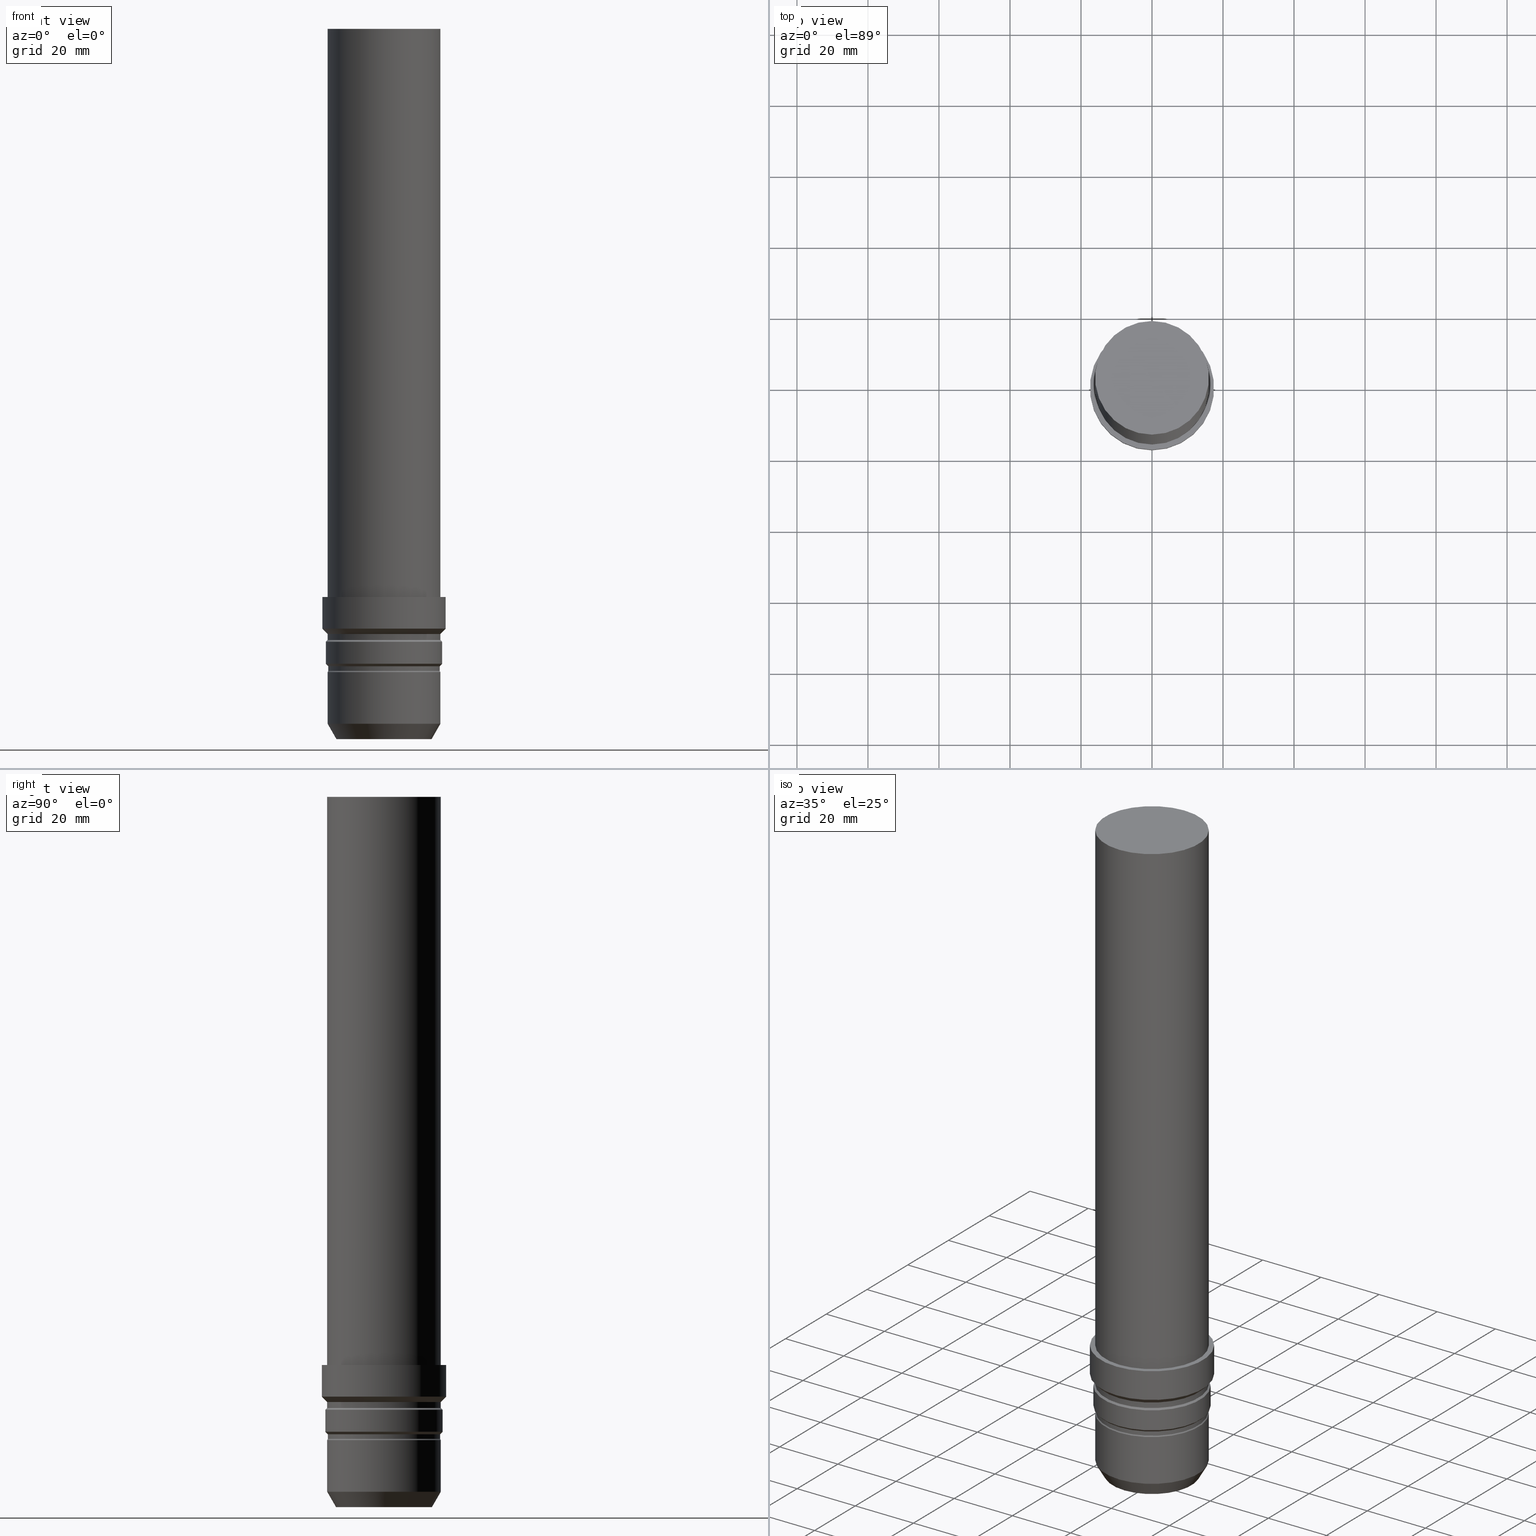
[diagram: canonical four-view strip — front | top / right | iso, engineering-drawing reading convention]
A machine part, canonical four-view strip (front | top / right | iso — engineering-drawing reading convention). The complete STEP part file that produces these views, byte-faithful:
ISO-10303-21;
HEADER;
FILE_DESCRIPTION((''),'1');
FILE_NAME('U:/Translate/00_BIG-HP\X2\FF71FF6FFF8CFF9F\X0\2013/\X2\30C030A630F330ED30FC30C930C730FC30BF\X0\/Vol9\X2\4EE5964D63B28F094E885B9A\X0\/STEP_\X2\FF82FF70FF98FF9DFF78FF9E7DE8\X0\Vol9-1\X2\4EE5964D63B28F094E885B9A\X0\/ST32-HMC12J-200.stp','2014-12-22T04:00:42',(''),(''),'Spatial Interop R21 SP3','Kubotek KeyCreator 2011 V10.0.2 (22737)',' ');
FILE_SCHEMA(('automotive_design'));
ENDSEC;
DATA;
#1=MECHANICAL_DESIGN_GEOMETRIC_PRESENTATION_REPRESENTATION(' ',(#10,#11,#12,#13,#14,#15,#16,#17,#18,#19,#20,#21,#22,#23,#24,#25,#26,#27,#28,#29,#30,#31,#32,#33,#34,#35,#36,#37),#6);
#2=PRODUCT_DEFINITION_CONTEXT('',#38,'design');
#3=APPLICATION_PROTOCOL_DEFINITION('INTERNATIONAL STANDARD','automotive_design',1994,#38);
#4=PRODUCT_CATEGORY_RELATIONSHIP('NONE','NONE',#39,#40);
#5=SHAPE_DEFINITION_REPRESENTATION(#41,#42);
#6= (GEOMETRIC_REPRESENTATION_CONTEXT(3)GLOBAL_UNCERTAINTY_ASSIGNED_CONTEXT((#45))GLOBAL_UNIT_ASSIGNED_CONTEXT((#47,#48,#49))REPRESENTATION_CONTEXT('NONE','WORKSPACE'));
#10=STYLED_ITEM('',(#51),#52);
#11=STYLED_ITEM('',(#53,#54),#55);
#12=STYLED_ITEM('',(#56),#57);
#13=STYLED_ITEM('',(#58,#59),#60);
#14=STYLED_ITEM('',(#61,#62),#63);
#15=STYLED_ITEM('',(#64,#65),#66);
#16=STYLED_ITEM('',(#67),#68);
#17=STYLED_ITEM('',(#69),#70);
#18=STYLED_ITEM('',(#71),#72);
#19=STYLED_ITEM('',(#73),#74);
#20=STYLED_ITEM('',(#75,#76),#77);
#21=STYLED_ITEM('',(#78,#79),#80);
#22=STYLED_ITEM('',(#81,#82),#83);
#23=STYLED_ITEM('',(#84,#85),#86);
#24=STYLED_ITEM('',(#87),#88);
#25=STYLED_ITEM('',(#89,#90),#91);
#26=STYLED_ITEM('',(#92,#93),#94);
#27=STYLED_ITEM('',(#95),#96);
#28=STYLED_ITEM('',(#97,#98),#99);
#29=STYLED_ITEM('',(#100,#101),#102);
#30=STYLED_ITEM('',(#103),#104);
#31=STYLED_ITEM('',(#105),#106);
#32=STYLED_ITEM('',(#107),#108);
#33=STYLED_ITEM('',(#109,#110),#111);
#34=STYLED_ITEM('',(#112,#113),#114);
#35=STYLED_ITEM('',(#115),#116);
#36=STYLED_ITEM('',(#117),#118);
#37=STYLED_ITEM('',(#119,#120),#121);
#38=APPLICATION_CONTEXT(' ');
#39=PRODUCT_CATEGORY('part','NONE');
#40=PRODUCT_RELATED_PRODUCT_CATEGORY('detail',' ',(#122));
#41=PRODUCT_DEFINITION_SHAPE('NONE','NONE',#123);
#42=ADVANCED_BREP_SHAPE_REPRESENTATION('Unnamed[1]',(#114,#124),#6);
#45=UNCERTAINTY_MEASURE_WITH_UNIT(LENGTH_MEASURE(1.0E-006),#47,'','');
#47= (CONVERSION_BASED_UNIT('MILLIMETRE',#127)LENGTH_UNIT()NAMED_UNIT(#130));
#48= (NAMED_UNIT(#132)PLANE_ANGLE_UNIT()SI_UNIT($,.RADIAN.));
#49= (NAMED_UNIT(#132)SOLID_ANGLE_UNIT()SI_UNIT($,.STERADIAN.));
#51=PRESENTATION_STYLE_ASSIGNMENT((#138));
#52=EDGE_CURVE('Unnamed[1]',#139,#139,#140,.T.);
#53=PRESENTATION_STYLE_ASSIGNMENT((#141));
#54=PRESENTATION_STYLE_ASSIGNMENT((#142));
#55=ADVANCED_FACE('Unnamed[1]',(#143,#144),#145,.T.);
#56=PRESENTATION_STYLE_ASSIGNMENT((#146));
#57=EDGE_CURVE('Unnamed[1]',#147,#147,#148,.T.);
#58=PRESENTATION_STYLE_ASSIGNMENT((#149));
#59=PRESENTATION_STYLE_ASSIGNMENT((#150));
#60=ADVANCED_FACE('Unnamed[1]',(#151,#152),#153,.T.);
#61=PRESENTATION_STYLE_ASSIGNMENT((#154));
#62=PRESENTATION_STYLE_ASSIGNMENT((#155));
#63=ADVANCED_FACE('Unnamed[1]',(#156,#157),#158,.T.);
#64=PRESENTATION_STYLE_ASSIGNMENT((#159));
#65=PRESENTATION_STYLE_ASSIGNMENT((#160));
#66=ADVANCED_FACE('Unnamed[1]',(#161,#162),#163,.T.);
#67=PRESENTATION_STYLE_ASSIGNMENT((#164));
#68=EDGE_CURVE('Unnamed[1]',#165,#165,#166,.T.);
#69=PRESENTATION_STYLE_ASSIGNMENT((#167));
#70=EDGE_CURVE('Unnamed[1]',#168,#168,#169,.T.);
#71=PRESENTATION_STYLE_ASSIGNMENT((#170));
#72=EDGE_CURVE('Unnamed[1]',#171,#171,#172,.T.);
#73=PRESENTATION_STYLE_ASSIGNMENT((#173));
#74=EDGE_CURVE('Unnamed[1]',#174,#174,#175,.T.);
#75=PRESENTATION_STYLE_ASSIGNMENT((#176));
#76=PRESENTATION_STYLE_ASSIGNMENT((#177));
#77=ADVANCED_FACE('Unnamed[1]',(#178,#179),#180,.T.);
#78=PRESENTATION_STYLE_ASSIGNMENT((#181));
#79=PRESENTATION_STYLE_ASSIGNMENT((#182));
#80=ADVANCED_FACE('Unnamed[1]',(#183,#184),#185,.T.);
#81=PRESENTATION_STYLE_ASSIGNMENT((#186));
#82=PRESENTATION_STYLE_ASSIGNMENT((#187));
#83=ADVANCED_FACE('Unnamed[1]',(#188,#189),#190,.T.);
#84=PRESENTATION_STYLE_ASSIGNMENT((#191));
#85=PRESENTATION_STYLE_ASSIGNMENT((#192));
#86=ADVANCED_FACE('Unnamed[1]',(#193,#194),#195,.T.);
#87=PRESENTATION_STYLE_ASSIGNMENT((#196));
#88=EDGE_CURVE('Unnamed[1]',#197,#197,#198,.T.);
#89=PRESENTATION_STYLE_ASSIGNMENT((#199));
#90=PRESENTATION_STYLE_ASSIGNMENT((#200));
#91=ADVANCED_FACE('Unnamed[1]',(#201),#202,.T.);
#92=PRESENTATION_STYLE_ASSIGNMENT((#203));
#93=PRESENTATION_STYLE_ASSIGNMENT((#204));
#94=ADVANCED_FACE('Unnamed[1]',(#205,#206),#207,.T.);
#95=PRESENTATION_STYLE_ASSIGNMENT((#208));
#96=EDGE_CURVE('Unnamed[1]',#209,#209,#210,.T.);
#97=PRESENTATION_STYLE_ASSIGNMENT((#211));
#98=PRESENTATION_STYLE_ASSIGNMENT((#212));
#99=ADVANCED_FACE('Unnamed[1]',(#213,#214),#215,.T.);
#100=PRESENTATION_STYLE_ASSIGNMENT((#216));
#101=PRESENTATION_STYLE_ASSIGNMENT((#217));
#102=ADVANCED_FACE('Unnamed[1]',(#218,#219),#220,.T.);
#103=PRESENTATION_STYLE_ASSIGNMENT((#221));
#104=EDGE_CURVE('Unnamed[1]',#222,#222,#223,.T.);
#105=PRESENTATION_STYLE_ASSIGNMENT((#224));
#106=EDGE_CURVE('Unnamed[1]',#225,#225,#226,.T.);
#107=PRESENTATION_STYLE_ASSIGNMENT((#227));
#108=EDGE_CURVE('Unnamed[1]',#228,#228,#229,.T.);
#109=PRESENTATION_STYLE_ASSIGNMENT((#230));
#110=PRESENTATION_STYLE_ASSIGNMENT((#231));
#111=ADVANCED_FACE('Unnamed[1]',(#232,#233),#234,.T.);
#112=PRESENTATION_STYLE_ASSIGNMENT((#235));
#113=PRESENTATION_STYLE_ASSIGNMENT((#236));
#114=MANIFOLD_SOLID_BREP('Unnamed[1]',#237);
#115=PRESENTATION_STYLE_ASSIGNMENT((#238));
#116=EDGE_CURVE('Unnamed[1]',#239,#239,#240,.T.);
#117=PRESENTATION_STYLE_ASSIGNMENT((#241));
#118=EDGE_CURVE('Unnamed[1]',#242,#242,#243,.T.);
#119=PRESENTATION_STYLE_ASSIGNMENT((#244));
#120=PRESENTATION_STYLE_ASSIGNMENT((#245));
#121=ADVANCED_FACE('Unnamed[1]',(#246),#247,.T.);
#122=PRODUCT('Unnamed[1]','Unnamed[1]','PART-Unnamed[1]-DESC',(#248));
#123=PRODUCT_DEFINITION('NONE','NONE',#249,#2);
#124=AXIS2_PLACEMENT_3D('',#250,#251,#252);
#127=LENGTH_MEASURE_WITH_UNIT(LENGTH_MEASURE(1.0),#253);
#130=DIMENSIONAL_EXPONENTS(1.0,0.0,0.0,0.0,0.0,0.0,0.0);
#132=DIMENSIONAL_EXPONENTS(0.0,0.0,0.0,0.0,0.0,0.0,0.0);
#138=CURVE_STYLE('',#254,POSITIVE_LENGTH_MEASURE(1000.0),#255);
#139=VERTEX_POINT('',#256);
#140=CIRCLE('',#257,16.0);
#141=SURFACE_STYLE_USAGE(.BOTH.,#258);
#142=CURVE_STYLE('',#259,POSITIVE_LENGTH_MEASURE(1000.0),#260);
#143=FACE_BOUND('',#261,.T.);
#144=FACE_BOUND('',#262,.T.);
#145=CYLINDRICAL_SURFACE('',#263,16.0000000000002);
#146=CURVE_STYLE('',#264,POSITIVE_LENGTH_MEASURE(1000.0),#265);
#147=VERTEX_POINT('',#266);
#148=CIRCLE('',#267,16.5000000000002);
#149=SURFACE_STYLE_USAGE(.BOTH.,#268);
#150=CURVE_STYLE('',#269,POSITIVE_LENGTH_MEASURE(1000.0),#270);
#151=FACE_BOUND('',#271,.T.);
#152=FACE_BOUND('',#272,.T.);
#153=CONICAL_SURFACE('',#273,16.7500000000002,0.785398163397435);
#154=SURFACE_STYLE_USAGE(.BOTH.,#274);
#155=CURVE_STYLE('',#275,POSITIVE_LENGTH_MEASURE(1000.0),#276);
#156=FACE_BOUND('',#277,.T.);
#157=FACE_BOUND('',#278,.T.);
#158=CONICAL_SURFACE('',#279,16.2500000000002,0.785398163397469);
#159=SURFACE_STYLE_USAGE(.BOTH.,#280);
#160=CURVE_STYLE('',#281,POSITIVE_LENGTH_MEASURE(1000.0),#282);
#161=FACE_OUTER_BOUND('',#283,.T.);
#162=FACE_BOUND('',#284,.T.);
#163=PLANE('',#285);
#164=CURVE_STYLE('',#286,POSITIVE_LENGTH_MEASURE(1000.0),#287);
#165=VERTEX_POINT('',#288);
#166=CIRCLE('',#289,16.0000000000002);
#167=CURVE_STYLE('',#290,POSITIVE_LENGTH_MEASURE(1000.0),#291);
#168=VERTEX_POINT('',#292);
#169=CIRCLE('',#293,13.5000000000001);
#170=CURVE_STYLE('',#294,POSITIVE_LENGTH_MEASURE(1000.0),#295);
#171=VERTEX_POINT('',#296);
#172=CIRCLE('',#297,16.0);
#173=CURVE_STYLE('',#298,POSITIVE_LENGTH_MEASURE(1000.0),#299);
#174=VERTEX_POINT('',#300);
#175=CIRCLE('',#301,16.0);
#176=SURFACE_STYLE_USAGE(.BOTH.,#302);
#177=CURVE_STYLE('',#303,POSITIVE_LENGTH_MEASURE(1000.0),#304);
#178=FACE_BOUND('',#305,.T.);
#179=FACE_BOUND('',#306,.T.);
#180=CONICAL_SURFACE('',#307,16.1500000000001,0.785398163397413);
#181=SURFACE_STYLE_USAGE(.BOTH.,#308);
#182=CURVE_STYLE('',#309,POSITIVE_LENGTH_MEASURE(1000.0),#310);
#183=FACE_BOUND('',#311,.T.);
#184=FACE_BOUND('',#312,.T.);
#185=CYLINDRICAL_SURFACE('',#313,15.8000000000001);
#186=SURFACE_STYLE_USAGE(.BOTH.,#314);
#187=CURVE_STYLE('',#315,POSITIVE_LENGTH_MEASURE(1000.0),#316);
#188=FACE_BOUND('',#317,.T.);
#189=FACE_BOUND('',#318,.T.);
#190=CYLINDRICAL_SURFACE('',#319,17.5000000000002);
#191=SURFACE_STYLE_USAGE(.BOTH.,#320);
#192=CURVE_STYLE('',#321,POSITIVE_LENGTH_MEASURE(1000.0),#322);
#193=FACE_BOUND('',#323,.T.);
#194=FACE_BOUND('',#324,.T.);
#195=CONICAL_SURFACE('',#325,15.9000000000001,0.523598775598126);
#196=CURVE_STYLE('',#326,POSITIVE_LENGTH_MEASURE(1000.0),#327);
#197=VERTEX_POINT('',#328);
#198=CIRCLE('',#329,16.0000000000002);
#199=SURFACE_STYLE_USAGE(.BOTH.,#330);
#200=CURVE_STYLE('',#331,POSITIVE_LENGTH_MEASURE(1000.0),#332);
#201=FACE_OUTER_BOUND('',#333,.T.);
#202=PLANE('',#334);
#203=SURFACE_STYLE_USAGE(.BOTH.,#335);
#204=CURVE_STYLE('',#336,POSITIVE_LENGTH_MEASURE(1000.0),#337);
#205=FACE_BOUND('',#338,.T.);
#206=FACE_BOUND('',#339,.T.);
#207=CONICAL_SURFACE('',#340,14.75,0.523598775598304);
#208=CURVE_STYLE('',#341,POSITIVE_LENGTH_MEASURE(1000.0),#342);
#209=VERTEX_POINT('',#343);
#210=CIRCLE('',#344,17.5000000000002);
#211=SURFACE_STYLE_USAGE(.BOTH.,#345);
#212=CURVE_STYLE('',#346,POSITIVE_LENGTH_MEASURE(1000.0),#347);
#213=FACE_BOUND('',#348,.T.);
#214=FACE_BOUND('',#349,.T.);
#215=CYLINDRICAL_SURFACE('',#350,16.5000000000001);
#216=SURFACE_STYLE_USAGE(.BOTH.,#351);
#217=CURVE_STYLE('',#352,POSITIVE_LENGTH_MEASURE(1000.0),#353);
#218=FACE_BOUND('',#354,.T.);
#219=FACE_BOUND('',#355,.T.);
#220=CYLINDRICAL_SURFACE('',#356,16.0000000000001);
#221=CURVE_STYLE('',#357,POSITIVE_LENGTH_MEASURE(1000.0),#358);
#222=VERTEX_POINT('',#359);
#223=CIRCLE('',#360,15.8000000000001);
#224=CURVE_STYLE('',#361,POSITIVE_LENGTH_MEASURE(1000.0),#362);
#225=VERTEX_POINT('',#363);
#226=CIRCLE('',#364,16.5000000000001);
#227=CURVE_STYLE('',#365,POSITIVE_LENGTH_MEASURE(1000.0),#366);
#228=VERTEX_POINT('',#367);
#229=CIRCLE('',#368,16.0000000000002);
#230=SURFACE_STYLE_USAGE(.BOTH.,#369);
#231=CURVE_STYLE('',#370,POSITIVE_LENGTH_MEASURE(1000.0),#371);
#232=FACE_BOUND('',#372,.T.);
#233=FACE_BOUND('',#373,.T.);
#234=CYLINDRICAL_SURFACE('',#374,16.0);
#235=SURFACE_STYLE_USAGE(.BOTH.,#375);
#236=CURVE_STYLE('',#376,POSITIVE_LENGTH_MEASURE(1000.0),#377);
#237=CLOSED_SHELL('',(#121,#102,#66,#83,#60,#55,#63,#99,#77,#80,#86,#111,#94,#91));
#238=CURVE_STYLE('',#378,POSITIVE_LENGTH_MEASURE(1000.0),#379);
#239=VERTEX_POINT('',#380);
#240=CIRCLE('',#381,17.5000000000002);
#241=CURVE_STYLE('',#382,POSITIVE_LENGTH_MEASURE(1000.0),#383);
#242=VERTEX_POINT('',#384);
#243=CIRCLE('',#385,15.8000000000001);
#244=SURFACE_STYLE_USAGE(.BOTH.,#386);
#245=CURVE_STYLE('',#387,POSITIVE_LENGTH_MEASURE(1000.0),#388);
#246=FACE_OUTER_BOUND('',#389,.T.);
#247=PLANE('',#390);
#248=PRODUCT_CONTEXT('',#38,'mechanical');
#249=PRODUCT_DEFINITION_FORMATION_WITH_SPECIFIED_SOURCE(' ','NONE',#122,.NOT_KNOWN.);
#250=CARTESIAN_POINT('',(0.0,0.0,0.0));
#251=DIRECTION('',(0.0,0.0,1.0));
#252=DIRECTION('',(1.0,0.0,0.0));
#253= (NAMED_UNIT(#130)LENGTH_UNIT()SI_UNIT(.MILLI.,.METRE.));
#254=DRAUGHTING_PRE_DEFINED_CURVE_FONT('continuous');
#255=COLOUR_RGB('',0.0,1.0,0.0);
#256=CARTESIAN_POINT('',(-1.15444942240699E-015,16.0,18.8535898384868));
#257=AXIS2_PLACEMENT_3D('',#392,#393,#394);
#258=SURFACE_SIDE_STYLE('',(#395));
#259=DRAUGHTING_PRE_DEFINED_CURVE_FONT('continuous');
#260=COLOUR_RGB('',0.0,1.0,0.0);
#261=EDGE_LOOP('',(#396));
#262=EDGE_LOOP('',(#397));
#263=AXIS2_PLACEMENT_3D('',#398,#399,#400);
#264=DRAUGHTING_PRE_DEFINED_CURVE_FONT('continuous');
#265=COLOUR_RGB('',0.0,1.0,0.0);
#266=CARTESIAN_POINT('',(-1.6777661148318E-015,16.5000000000002,27.3999999999988));
#267=AXIS2_PLACEMENT_3D('',#401,#402,#403);
#268=SURFACE_SIDE_STYLE('',(#404));
#269=DRAUGHTING_PRE_DEFINED_CURVE_FONT('continuous');
#270=COLOUR_RGB('',0.0,1.0,0.0);
#271=EDGE_LOOP('',(#405));
#272=EDGE_LOOP('',(#406));
#273=AXIS2_PLACEMENT_3D('',#407,#408,#409);
#274=SURFACE_SIDE_STYLE('',(#410));
#275=DRAUGHTING_PRE_DEFINED_CURVE_FONT('continuous');
#276=COLOUR_RGB('',0.0,1.0,0.0);
#277=EDGE_LOOP('',(#411));
#278=EDGE_LOOP('',(#412));
#279=AXIS2_PLACEMENT_3D('',#413,#414,#415);
#280=SURFACE_SIDE_STYLE('',(#416));
#281=DRAUGHTING_PRE_DEFINED_CURVE_FONT('continuous');
#282=COLOUR_RGB('',0.0,1.0,0.0);
#283=EDGE_LOOP('',(#417));
#284=EDGE_LOOP('',(#418));
#285=AXIS2_PLACEMENT_3D('',#419,#420,#421);
#286=DRAUGHTING_PRE_DEFINED_CURVE_FONT('continuous');
#287=COLOUR_RGB('',0.0,1.0,0.0);
#288=CARTESIAN_POINT('',(-2.4492935982947E-015,16.0000000000002,39.9999999999999));
#289=AXIS2_PLACEMENT_3D('',#422,#423,#424);
#290=DRAUGHTING_PRE_DEFINED_CURVE_FONT('continuous');
#291=COLOUR_RGB('',0.0,1.0,0.0);
#292=CARTESIAN_POINT('',(1.57772181044202E-030,13.5000000000001,-2.8421709430404E-014));
#293=AXIS2_PLACEMENT_3D('',#425,#426,#427);
#294=DRAUGHTING_PRE_DEFINED_CURVE_FONT('continuous');
#295=COLOUR_RGB('',0.0,1.0,0.0);
#296=CARTESIAN_POINT('',(-1.22464679914735E-014,16.0000000000002,200.0));
#297=AXIS2_PLACEMENT_3D('',#428,#429,#430);
#298=DRAUGHTING_PRE_DEFINED_CURVE_FONT('continuous');
#299=COLOUR_RGB('',0.0,1.0,0.0);
#300=CARTESIAN_POINT('',(-2.65143809681212E-016,16.0,4.33012701892196));
#301=AXIS2_PLACEMENT_3D('',#431,#432,#433);
#302=SURFACE_SIDE_STYLE('',(#434));
#303=DRAUGHTING_PRE_DEFINED_CURVE_FONT('continuous');
#304=COLOUR_RGB('',0.0,1.0,0.0);
#305=EDGE_LOOP('',(#435));
#306=EDGE_LOOP('',(#436));
#307=AXIS2_PLACEMENT_3D('',#437,#438,#439);
#308=SURFACE_SIDE_STYLE('',(#440));
#309=DRAUGHTING_PRE_DEFINED_CURVE_FONT('continuous');
#310=COLOUR_RGB('',0.0,1.0,0.0);
#311=EDGE_LOOP('',(#441));
#312=EDGE_LOOP('',(#442));
#313=AXIS2_PLACEMENT_3D('',#443,#444,#445);
#314=SURFACE_SIDE_STYLE('',(#446));
#315=DRAUGHTING_PRE_DEFINED_CURVE_FONT('continuous');
#316=COLOUR_RGB('',0.0,1.0,0.0);
#317=EDGE_LOOP('',(#447));
#318=EDGE_LOOP('',(#448));
#319=AXIS2_PLACEMENT_3D('',#449,#450,#451);
#320=SURFACE_SIDE_STYLE('',(#452));
#321=DRAUGHTING_PRE_DEFINED_CURVE_FONT('continuous');
#322=COLOUR_RGB('',0.0,1.0,0.0);
#323=EDGE_LOOP('',(#453));
#324=EDGE_LOOP('',(#454));
#325=AXIS2_PLACEMENT_3D('',#455,#456,#457);
#326=DRAUGHTING_PRE_DEFINED_CURVE_FONT('continuous');
#327=COLOUR_RGB('',0.0,1.0,0.0);
#328=CARTESIAN_POINT('',(-1.81247726273802E-015,16.0000000000002,29.5999999999989));
#329=AXIS2_PLACEMENT_3D('',#458,#459,#460);
#330=SURFACE_SIDE_STYLE('',(#461));
#331=DRAUGHTING_PRE_DEFINED_CURVE_FONT('continuous');
#332=COLOUR_RGB('',0.0,1.0,0.0);
#333=EDGE_LOOP('',(#462));
#334=AXIS2_PLACEMENT_3D('',#463,#464,#465);
#335=SURFACE_SIDE_STYLE('',(#466));
#336=DRAUGHTING_PRE_DEFINED_CURVE_FONT('continuous');
#337=COLOUR_RGB('',0.0,1.0,0.0);
#338=EDGE_LOOP('',(#467));
#339=EDGE_LOOP('',(#468));
#340=AXIS2_PLACEMENT_3D('',#469,#470,#471);
#341=DRAUGHTING_PRE_DEFINED_CURVE_FONT('continuous');
#342=COLOUR_RGB('',0.0,1.0,0.0);
#343=CARTESIAN_POINT('',(-2.44929359829466E-015,17.5000000000002,39.9999999999992));
#344=AXIS2_PLACEMENT_3D('',#472,#473,#474);
#345=SURFACE_SIDE_STYLE('',(#475));
#346=DRAUGHTING_PRE_DEFINED_CURVE_FONT('continuous');
#347=COLOUR_RGB('',0.0,1.0,0.0);
#348=EDGE_LOOP('',(#476));
#349=EDGE_LOOP('',(#477));
#350=AXIS2_PLACEMENT_3D('',#478,#479,#480);
#351=SURFACE_SIDE_STYLE('',(#481));
#352=DRAUGHTING_PRE_DEFINED_CURVE_FONT('continuous');
#353=COLOUR_RGB('',0.0,1.0,0.0);
#354=EDGE_LOOP('',(#482));
#355=EDGE_LOOP('',(#483));
#356=AXIS2_PLACEMENT_3D('',#484,#485,#486);
#357=DRAUGHTING_PRE_DEFINED_CURVE_FONT('continuous');
#358=COLOUR_RGB('',0.0,1.0,0.0);
#359=CARTESIAN_POINT('',(-1.17566092718148E-015,15.8000000000002,19.2000000000004));
#360=AXIS2_PLACEMENT_3D('',#487,#488,#489);
#361=DRAUGHTING_PRE_DEFINED_CURVE_FONT('continuous');
#362=COLOUR_RGB('',0.0,1.0,0.0);
#363=CARTESIAN_POINT('',(-1.29812560709621E-015,16.5000000000001,21.2000000000002));
#364=AXIS2_PLACEMENT_3D('',#490,#491,#492);
#365=DRAUGHTING_PRE_DEFINED_CURVE_FONT('continuous');
#366=COLOUR_RGB('',0.0,1.0,0.0);
#367=CARTESIAN_POINT('',(-1.70838228481049E-015,16.0000000000002,27.8999999999988));
#368=AXIS2_PLACEMENT_3D('',#493,#494,#495);
#369=SURFACE_SIDE_STYLE('',(#496));
#370=DRAUGHTING_PRE_DEFINED_CURVE_FONT('continuous');
#371=COLOUR_RGB('',0.0,1.0,0.0);
#372=EDGE_LOOP('',(#497));
#373=EDGE_LOOP('',(#498));
#374=AXIS2_PLACEMENT_3D('',#499,#500,#501);
#375=SURFACE_SIDE_STYLE('',(#502));
#376=DRAUGHTING_PRE_DEFINED_CURVE_FONT('continuous');
#377=COLOUR_RGB('',0.0,1.0,0.0);
#378=DRAUGHTING_PRE_DEFINED_CURVE_FONT('continuous');
#379=COLOUR_RGB('',0.0,1.0,0.0);
#380=CARTESIAN_POINT('',(-1.90432577267407E-015,17.5000000000002,31.099999999999));
#381=AXIS2_PLACEMENT_3D('',#503,#504,#505);
#382=DRAUGHTING_PRE_DEFINED_CURVE_FONT('continuous');
#383=COLOUR_RGB('',0.0,1.0,0.0);
#384=CARTESIAN_POINT('',(-1.25526296912605E-015,15.8000000000002,20.5000000000003));
#385=AXIS2_PLACEMENT_3D('',#506,#507,#508);
#386=SURFACE_SIDE_STYLE('',(#509));
#387=DRAUGHTING_PRE_DEFINED_CURVE_FONT('continuous');
#388=COLOUR_RGB('',0.0,1.0,0.0);
#389=EDGE_LOOP('',(#510));
#390=AXIS2_PLACEMENT_3D('',#511,#512,#513);
#392=CARTESIAN_POINT('',(-1.154449422407E-015,2.02407412788415E-014,18.8535898384868));
#393=DIRECTION('',(6.12323399573676E-017,-1.07357492404576E-015,-1.0));
#394=DIRECTION('',(6.09103519881032E-032,1.0,-1.07357492404576E-015));
#395=SURFACE_STYLE_FILL_AREA(#514);
#396=ORIENTED_EDGE('',*,*,#108,.F.);
#397=ORIENTED_EDGE('',*,*,#88,.T.);
#398=CARTESIAN_POINT('',(-1.76042977377425E-015,3.08652790663117E-014,28.7499999999989));
#399=DIRECTION('',(6.12323399573676E-017,-1.07357492404574E-015,-1.0));
#400=DIRECTION('',(6.09103519881024E-032,1.0,-1.07357492404574E-015));
#401=CARTESIAN_POINT('',(-1.6777661148318E-015,2.941595291885E-014,27.3999999999989));
#402=DIRECTION('',(6.12323399573676E-017,-1.07357492404572E-015,-1.0));
#403=DIRECTION('',(6.09103519881139E-032,1.0,-1.07357492404572E-015));
#404=SURFACE_STYLE_FILL_AREA(#515);
#405=ORIENTED_EDGE('',*,*,#88,.F.);
#406=ORIENTED_EDGE('',*,*,#116,.T.);
#407=CARTESIAN_POINT('',(-1.85840151770604E-015,3.25829989447848E-014,30.349999999999));
#408=DIRECTION('',(-6.12323399573676E-017,1.07357492404571E-015,1.0));
#409=DIRECTION('',(6.09103519880981E-032,1.0,-1.07357492404571E-015));
#410=SURFACE_STYLE_FILL_AREA(#516);
#411=ORIENTED_EDGE('',*,*,#57,.F.);
#412=ORIENTED_EDGE('',*,*,#108,.T.);
#413=CARTESIAN_POINT('',(-1.69307419982115E-015,2.96843466498614E-014,27.6499999999989));
#414=DIRECTION('',(6.12323399573677E-017,-1.07357492404573E-015,-1.0));
#415=DIRECTION('',(6.09103519881082E-032,1.0,-1.07357492404573E-015));
#416=SURFACE_STYLE_FILL_AREA(#517);
#417=ORIENTED_EDGE('',*,*,#96,.F.);
#418=ORIENTED_EDGE('',*,*,#68,.T.);
#419=CARTESIAN_POINT('',(-2.44929359829468E-015,16.7500000000002,39.9999999999995));
#420=DIRECTION('',(-6.12323399573677E-017,4.54624886206558E-013,1.0));
#421=DIRECTION('',(-2.78329184325488E-029,-1.0,4.54624886206558E-013));
#422=CARTESIAN_POINT('',(-2.4492935982947E-015,4.29429969618264E-014,39.9999999999999));
#423=DIRECTION('',(6.12323399573677E-017,-1.07357492404574E-015,-1.0));
#424=DIRECTION('',(6.09103519881023E-032,1.0,-1.07357492404574E-015));
#425=CARTESIAN_POINT('',(0.0,0.0,0.0));
#426=DIRECTION('',(6.12323399573677E-017,-1.07357492404566E-015,-1.0));
#427=DIRECTION('',(6.09103519880986E-032,1.0,-1.07357492404566E-015));
#428=CARTESIAN_POINT('',(-1.22464679914735E-014,2.14714984809132E-013,200.0));
#429=DIRECTION('',(6.12323399573677E-017,-1.07357492404576E-015,-1.0));
#430=DIRECTION('',(6.09103519881032E-032,1.0,-1.07357492404576E-015));
#431=CARTESIAN_POINT('',(-2.65143809681214E-016,4.64871578544724E-015,4.33012701892198));
#432=DIRECTION('',(6.12323399573676E-017,-1.07357492404576E-015,-1.0));
#433=DIRECTION('',(6.09103519881032E-032,1.0,-1.07357492404576E-015));
#434=SURFACE_STYLE_FILL_AREA(#518);
#435=ORIENTED_EDGE('',*,*,#118,.F.);
#436=ORIENTED_EDGE('',*,*,#106,.T.);
#437=CARTESIAN_POINT('',(-1.27669428811113E-015,2.23840371663524E-014,20.8500000000003));
#438=DIRECTION('',(-6.12323399573676E-017,1.07357492404558E-015,1.0));
#439=DIRECTION('',(6.09103519880973E-032,1.0,-1.07357492404558E-015));
#440=SURFACE_STYLE_FILL_AREA(#519);
#441=ORIENTED_EDGE('',*,*,#104,.F.);
#442=ORIENTED_EDGE('',*,*,#118,.T.);
#443=CARTESIAN_POINT('',(-1.21546194815377E-015,2.13104622423068E-014,19.8500000000003));
#444=DIRECTION('',(6.12323399573677E-017,-1.07357492404563E-015,-1.0));
#445=DIRECTION('',(6.0910351988125E-032,1.0,-1.07357492404563E-015));
#446=SURFACE_STYLE_FILL_AREA(#520);
#447=ORIENTED_EDGE('',*,*,#116,.F.);
#448=ORIENTED_EDGE('',*,*,#96,.T.);
#449=CARTESIAN_POINT('',(-2.17680968548436E-015,3.81655885498224E-014,35.5499999999991));
#450=DIRECTION('',(6.12323399573677E-017,-1.07357492404567E-015,-1.0));
#451=DIRECTION('',(6.09103519880942E-032,1.0,-1.07357492404567E-015));
#452=SURFACE_STYLE_FILL_AREA(#521);
#453=ORIENTED_EDGE('',*,*,#52,.F.);
#454=ORIENTED_EDGE('',*,*,#104,.T.);
#455=CARTESIAN_POINT('',(-1.16505517479424E-015,2.04266899102594E-014,19.0267949192436));
#456=DIRECTION('',(6.12323399573677E-017,-1.07357492404559E-015,-1.0));
#457=DIRECTION('',(6.09103519880915E-032,1.0,-1.07357492404559E-015));
#458=CARTESIAN_POINT('',(-1.81247726273802E-015,3.17778177517505E-014,29.599999999999));
#459=DIRECTION('',(6.12323399573676E-017,-1.07357492404574E-015,-1.0));
#460=DIRECTION('',(6.09103519881024E-032,1.0,-1.07357492404574E-015));
#461=SURFACE_STYLE_FILL_AREA(#522);
#462=ORIENTED_EDGE('',*,*,#70,.T.);
#463=CARTESIAN_POINT('',(4.57539325028187E-029,6.75000000000003,-7.38964445190504E-013));
#464=DIRECTION('',(6.12323399573677E-017,1.05388055162892E-013,-1.0));
#465=DIRECTION('',(-6.45798437391079E-030,1.0,1.05388055162892E-013));
#466=SURFACE_STYLE_FILL_AREA(#523);
#467=ORIENTED_EDGE('',*,*,#70,.F.);
#468=ORIENTED_EDGE('',*,*,#74,.T.);
#469=CARTESIAN_POINT('',(-1.32571904840606E-016,2.32435789272365E-015,2.16506350946099));
#470=DIRECTION('',(-6.12323399573677E-017,1.0735749240456E-015,1.0));
#471=DIRECTION('',(6.0910351988095E-032,1.0,-1.0735749240456E-015));
#472=CARTESIAN_POINT('',(-2.44929359829466E-015,4.29429969618257E-014,39.9999999999992));
#473=DIRECTION('',(6.12323399573676E-017,-1.07357492404567E-015,-1.0));
#474=DIRECTION('',(6.09103519880942E-032,1.0,-1.07357492404567E-015));
#475=SURFACE_STYLE_FILL_AREA(#524);
#476=ORIENTED_EDGE('',*,*,#106,.F.);
#477=ORIENTED_EDGE('',*,*,#57,.T.);
#478=CARTESIAN_POINT('',(-1.48794586096401E-015,2.60878706543092E-014,24.2999999999996));
#479=DIRECTION('',(6.12323399573677E-017,-1.07357492404572E-015,-1.0));
#480=DIRECTION('',(6.09103519880924E-032,1.0,-1.07357492404572E-015));
#481=SURFACE_STYLE_FILL_AREA(#525);
#482=ORIENTED_EDGE('',*,*,#68,.F.);
#483=ORIENTED_EDGE('',*,*,#72,.T.);
#484=CARTESIAN_POINT('',(-7.3478807948841E-015,1.28828990885479E-013,120.0));
#485=DIRECTION('',(6.12323399573676E-017,-1.07357492404575E-015,-1.0));
#486=DIRECTION('',(6.09103519881252E-032,1.0,-1.07357492404575E-015));
#487=CARTESIAN_POINT('',(-1.17566092718148E-015,2.06126385416772E-014,19.2000000000004));
#488=DIRECTION('',(6.12323399573677E-017,-1.07357492404563E-015,-1.0));
#489=DIRECTION('',(6.0910351988125E-032,1.0,-1.07357492404563E-015));
#490=CARTESIAN_POINT('',(-1.29812560709621E-015,2.27597883897684E-014,21.2000000000003));
#491=DIRECTION('',(6.12323399573677E-017,-1.07357492404572E-015,-1.0));
#492=DIRECTION('',(6.09103519880926E-032,1.0,-1.07357492404572E-015));
#493=CARTESIAN_POINT('',(-1.70838228481049E-015,2.99527403808728E-014,27.8999999999989));
#494=DIRECTION('',(6.12323399573676E-017,-1.07357492404574E-015,-1.0));
#495=DIRECTION('',(6.09103519881024E-032,1.0,-1.07357492404574E-015));
#496=SURFACE_STYLE_FILL_AREA(#526);
#497=ORIENTED_EDGE('',*,*,#74,.F.);
#498=ORIENTED_EDGE('',*,*,#52,.T.);
#499=CARTESIAN_POINT('',(-7.09796616044105E-016,1.24447285321444E-014,11.5918584287044));
#500=DIRECTION('',(6.12323399573677E-017,-1.07357492404576E-015,-1.0));
#501=DIRECTION('',(6.09103519881256E-032,1.0,-1.07357492404576E-015));
#502=SURFACE_STYLE_FILL_AREA(#527);
#503=CARTESIAN_POINT('',(-1.90432577267407E-015,3.33881801378191E-014,31.099999999999));
#504=DIRECTION('',(6.12323399573677E-017,-1.07357492404567E-015,-1.0));
#505=DIRECTION('',(6.09103519880941E-032,1.0,-1.07357492404567E-015));
#506=CARTESIAN_POINT('',(-1.25526296912605E-015,2.20082859429364E-014,20.5000000000003));
#507=DIRECTION('',(6.12323399573677E-017,-1.07357492404563E-015,-1.0));
#508=DIRECTION('',(6.0910351988125E-032,1.0,-1.07357492404563E-015));
#509=SURFACE_STYLE_FILL_AREA(#528);
#510=ORIENTED_EDGE('',*,*,#72,.F.);
#511=CARTESIAN_POINT('',(-1.22464679914735E-014,8.0000000000002,200.0));
#512=DIRECTION('',(-6.12323399573677E-017,1.81018652890104E-015,1.0));
#513=DIRECTION('',(-1.06014804193147E-031,-1.0,1.81018652890104E-015));
#514=FILL_AREA_STYLE('',(#529));
#515=FILL_AREA_STYLE('',(#530));
#516=FILL_AREA_STYLE('',(#531));
#517=FILL_AREA_STYLE('',(#532));
#518=FILL_AREA_STYLE('',(#533));
#519=FILL_AREA_STYLE('',(#534));
#520=FILL_AREA_STYLE('',(#535));
#521=FILL_AREA_STYLE('',(#536));
#522=FILL_AREA_STYLE('',(#537));
#523=FILL_AREA_STYLE('',(#538));
#524=FILL_AREA_STYLE('',(#539));
#525=FILL_AREA_STYLE('',(#540));
#526=FILL_AREA_STYLE('',(#541));
#527=FILL_AREA_STYLE('',(#542));
#528=FILL_AREA_STYLE('',(#543));
#529=FILL_AREA_STYLE_COLOUR('',#544);
#530=FILL_AREA_STYLE_COLOUR('',#545);
#531=FILL_AREA_STYLE_COLOUR('',#546);
#532=FILL_AREA_STYLE_COLOUR('',#547);
#533=FILL_AREA_STYLE_COLOUR('',#548);
#534=FILL_AREA_STYLE_COLOUR('',#549);
#535=FILL_AREA_STYLE_COLOUR('',#550);
#536=FILL_AREA_STYLE_COLOUR('',#551);
#537=FILL_AREA_STYLE_COLOUR('',#552);
#538=FILL_AREA_STYLE_COLOUR('',#553);
#539=FILL_AREA_STYLE_COLOUR('',#554);
#540=FILL_AREA_STYLE_COLOUR('',#555);
#541=FILL_AREA_STYLE_COLOUR('',#556);
#542=FILL_AREA_STYLE_COLOUR('',#557);
#543=FILL_AREA_STYLE_COLOUR('',#558);
#544=COLOUR_RGB('',0.0,1.0,0.0);
#545=COLOUR_RGB('',0.0,1.0,0.0);
#546=COLOUR_RGB('',0.0,1.0,0.0);
#547=COLOUR_RGB('',0.0,1.0,0.0);
#548=COLOUR_RGB('',0.0,1.0,0.0);
#549=COLOUR_RGB('',0.0,1.0,0.0);
#550=COLOUR_RGB('',0.0,1.0,0.0);
#551=COLOUR_RGB('',0.0,1.0,0.0);
#552=COLOUR_RGB('',0.0,1.0,0.0);
#553=COLOUR_RGB('',0.0,1.0,0.0);
#554=COLOUR_RGB('',0.0,1.0,0.0);
#555=COLOUR_RGB('',0.0,1.0,0.0);
#556=COLOUR_RGB('',0.0,1.0,0.0);
#557=COLOUR_RGB('',0.0,1.0,0.0);
#558=COLOUR_RGB('',0.0,1.0,0.0);
ENDSEC;
END-ISO-10303-21;
